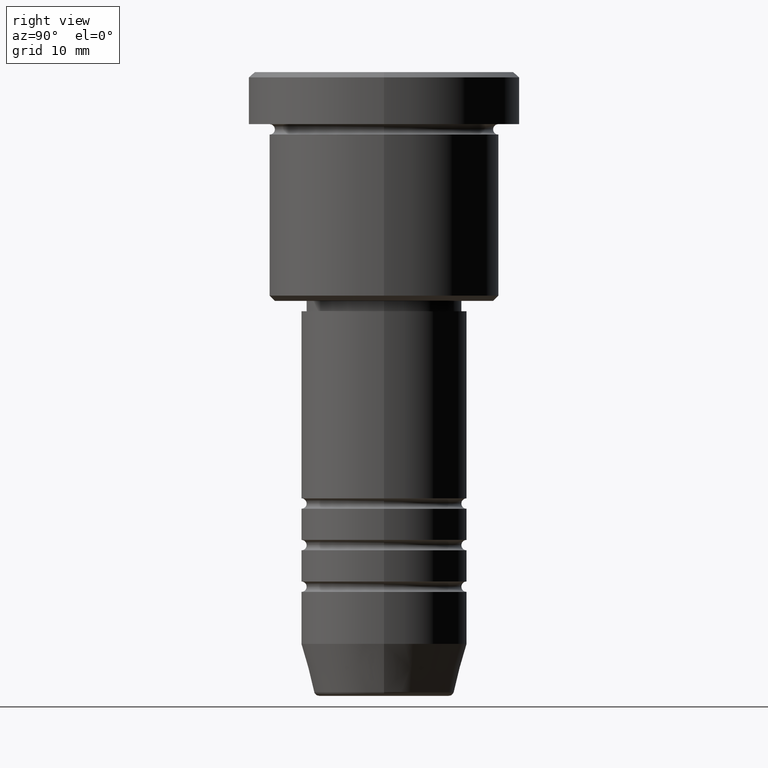
[diagram: clean part render]
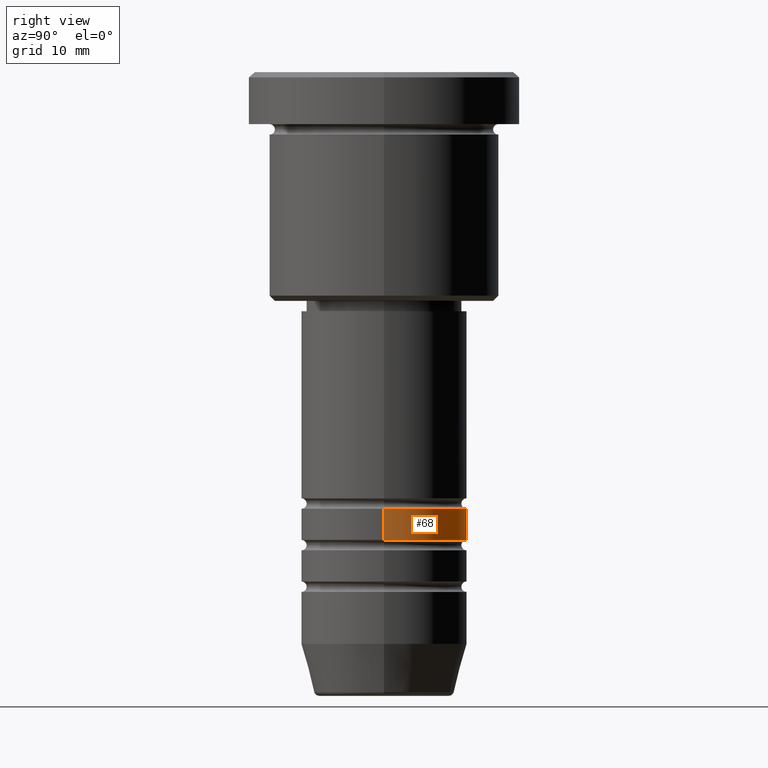
[diagram: same view with one face highlighted and labeled with its STEP entity id]
A machine part, right view. The second image highlights one B-rep face of the part: STEP entity #68.
In plain terms, the highlighted cylindrical surface (partial cylindrical patch) has radius 8 mm, axis along (-0, -0, 1).
Its self-contained STEP definition (entity closure, byte-faithful):
#18 = CARTESIAN_POINT ( 'NONE',  ( -8.000000000000001776, 9.797174393178827630E-16, 0.000000000000000000 ) ) ;
#26 = VERTEX_POINT ( 'NONE', #205 ) ;
#49 = EDGE_CURVE ( 'NONE', #905, #26, #291, .T. ) ;
#58 = DIRECTION ( 'NONE',  ( -0.000000000000000000, -0.000000000000000000, 1.000000000000000000 ) ) ;
#64 = CARTESIAN_POINT ( 'NONE',  ( 8.000000000000000000, 0.000000000000000000, -41.99999999999999289 ) ) ;
#68 = ADVANCED_FACE ( 'NONE', ( #559 ), #367, .T. ) ;
#105 = DIRECTION ( 'NONE',  ( -0.000000000000000000, -0.000000000000000000, 1.000000000000000000 ) ) ;
#141 = AXIS2_PLACEMENT_3D ( 'NONE', #718, #328, #804 ) ;
#205 = CARTESIAN_POINT ( 'NONE',  ( -8.000000000000000000, 9.797174393178827630E-16, -41.99999999999999289 ) ) ;
#287 = DIRECTION ( 'NONE',  ( 1.000000000000000000, 0.000000000000000000, 0.000000000000000000 ) ) ;
#289 = DIRECTION ( 'NONE',  ( 1.000000000000000000, 0.000000000000000000, 0.000000000000000000 ) ) ;
#291 = LINE ( 'NONE', #18, #1056 ) ;
#295 = EDGE_CURVE ( 'NONE', #599, #26, #1000, .T. ) ;
#328 = DIRECTION ( 'NONE',  ( -0.000000000000000000, -0.000000000000000000, 1.000000000000000000 ) ) ;
#337 = EDGE_LOOP ( 'NONE', ( #1107, #1166, #859, #462 ) ) ;
#367 = CYLINDRICAL_SURFACE ( 'NONE', #666, 8.000000000000001776 ) ;
#421 = CARTESIAN_POINT ( 'NONE',  ( 8.000000000000003553, 0.000000000000000000, -44.99999999999999289 ) ) ;
#462 = ORIENTED_EDGE ( 'NONE', *, *, #662, .F. ) ;
#476 = AXIS2_PLACEMENT_3D ( 'NONE', #1013, #834, #289 ) ;
#497 = CARTESIAN_POINT ( 'NONE',  ( 8.000000000000001776, 0.000000000000000000, 0.000000000000000000 ) ) ;
#543 = CARTESIAN_POINT ( 'NONE',  ( 0.000000000000000000, 0.000000000000000000, 0.000000000000000000 ) ) ;
#559 = FACE_OUTER_BOUND ( 'NONE', #337, .T. ) ;
#581 = LINE ( 'NONE', #497, #734 ) ;
#595 = VERTEX_POINT ( 'NONE', #421 ) ;
#599 = VERTEX_POINT ( 'NONE', #64 ) ;
#662 = EDGE_CURVE ( 'NONE', #595, #599, #581, .T. ) ;
#666 = AXIS2_PLACEMENT_3D ( 'NONE', #543, #105, #287 ) ;
#718 = CARTESIAN_POINT ( 'NONE',  ( 0.000000000000000000, 0.000000000000000000, -41.99999999999999289 ) ) ;
#734 = VECTOR ( 'NONE', #58, 1000.000000000000000 ) ;
#804 = DIRECTION ( 'NONE',  ( 1.000000000000000000, 0.000000000000000000, 0.000000000000000000 ) ) ;
#834 = DIRECTION ( 'NONE',  ( -0.000000000000000000, -0.000000000000000000, 1.000000000000000000 ) ) ;
#859 = ORIENTED_EDGE ( 'NONE', *, *, #295, .F. ) ;
#867 = CIRCLE ( 'NONE', #476, 8.000000000000003553 ) ;
#877 = EDGE_CURVE ( 'NONE', #595, #905, #867, .T. ) ;
#905 = VERTEX_POINT ( 'NONE', #1117 ) ;
#1000 = CIRCLE ( 'NONE', #141, 8.000000000000000000 ) ;
#1013 = CARTESIAN_POINT ( 'NONE',  ( 0.000000000000000000, 0.000000000000000000, -44.99999999999999289 ) ) ;
#1030 = DIRECTION ( 'NONE',  ( -0.000000000000000000, -0.000000000000000000, 1.000000000000000000 ) ) ;
#1056 = VECTOR ( 'NONE', #1030, 1000.000000000000000 ) ;
#1107 = ORIENTED_EDGE ( 'NONE', *, *, #877, .T. ) ;
#1117 = CARTESIAN_POINT ( 'NONE',  ( -8.000000000000003553, 9.797174393178829602E-16, -44.99999999999999289 ) ) ;
#1166 = ORIENTED_EDGE ( 'NONE', *, *, #49, .T. ) ;